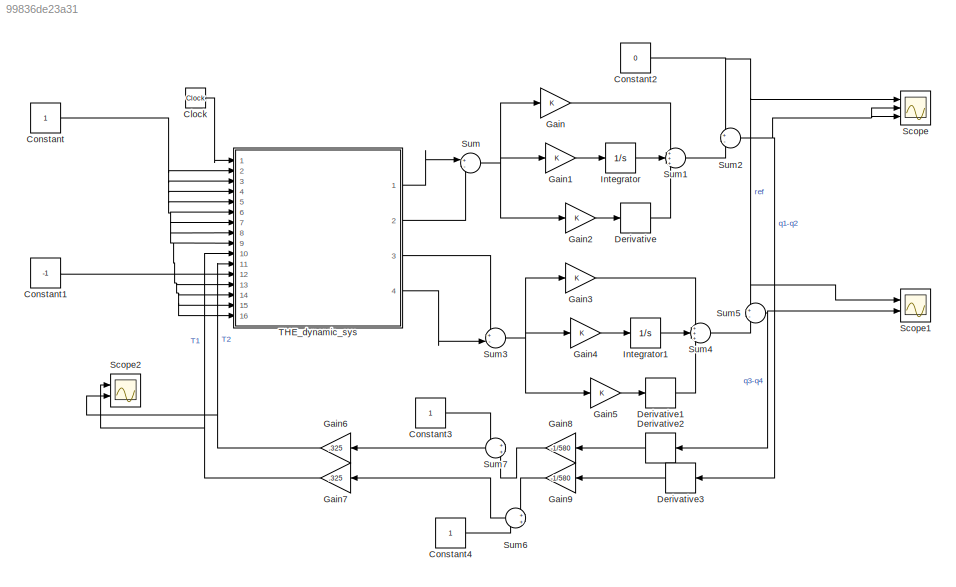
MODEL slx_99836de23a31
KIND model
CONFIG AbsTol = auto
CONFIG EnableMultiTasking = off
CONFIG FixedStep = auto
CONFIG MaxStep = auto
CONFIG MinStep = auto
CONFIG RelTol = 1e-3
CONFIG SampleTimeConstraint = Unconstrained
CONFIG Solver = VariableStepAuto
CONFIG SolverName = VariableStepAuto
CONFIG StartTime = 0.0
CONFIG StopTime = 10
BLOCK [Clock] Clock
  Decimation = 1
BLOCK [Constant] Constant
BLOCK [Constant] Constant1
  Value = -1
BLOCK [Constant] Constant2
  Value = 0
BLOCK [Constant] Constant3
BLOCK [Constant] Constant4
BLOCK [Derivative] Derivative
BLOCK [Derivative] Derivative1
BLOCK [Derivative] Derivative2
BLOCK [Derivative] Derivative3
BLOCK [Gain] Gain
  OutDataTypeStr = Inherit: Inherit via internal rule
  ParamDataTypeStr = Inherit: Inherit via internal rule
  SaturateOnIntegerOverflow = off
BLOCK [Gain] Gain1
  OutDataTypeStr = Inherit: Inherit via internal rule
  ParamDataTypeStr = Inherit: Inherit via internal rule
  SaturateOnIntegerOverflow = off
BLOCK [Gain] Gain2
  OutDataTypeStr = Inherit: Inherit via internal rule
  ParamDataTypeStr = Inherit: Inherit via internal rule
  SaturateOnIntegerOverflow = off
BLOCK [Gain] Gain3
  OutDataTypeStr = Inherit: Inherit via internal rule
  ParamDataTypeStr = Inherit: Inherit via internal rule
  SaturateOnIntegerOverflow = off
BLOCK [Gain] Gain4
  OutDataTypeStr = Inherit: Inherit via internal rule
  ParamDataTypeStr = Inherit: Inherit via internal rule
  SaturateOnIntegerOverflow = off
BLOCK [Gain] Gain5
  OutDataTypeStr = Inherit: Inherit via internal rule
  ParamDataTypeStr = Inherit: Inherit via internal rule
  SaturateOnIntegerOverflow = off
BLOCK [Gain] Gain6
  Gain = .325
  OutDataTypeStr = Inherit: Inherit via internal rule
  ParamDataTypeStr = Inherit: Inherit via internal rule
  SaturateOnIntegerOverflow = off
BLOCK [Gain] Gain7
  Gain = .325
  OutDataTypeStr = Inherit: Inherit via internal rule
  ParamDataTypeStr = Inherit: Inherit via internal rule
  SaturateOnIntegerOverflow = off
BLOCK [Gain] Gain8
  Gain = -1/580
  OutDataTypeStr = Inherit: Inherit via internal rule
  ParamDataTypeStr = Inherit: Inherit via internal rule
  SaturateOnIntegerOverflow = off
BLOCK [Gain] Gain9
  Gain = -1/580
  OutDataTypeStr = Inherit: Inherit via internal rule
  ParamDataTypeStr = Inherit: Inherit via internal rule
  SaturateOnIntegerOverflow = off
BLOCK [Integrator] Integrator
  Ports = [1, 1]
BLOCK [Integrator] Integrator1
  Ports = [1, 1]
BLOCK [Scope] Scope
  Floating = off
  NumInputPorts = 3
  Ports = [3]
  ScopeSpecificationString = Simulink.scopes.TimeScopeBlockCfg('CurrentConfiguration', extmgr.ConfigurationSet(extmgr.Configuration('Core','General UI',true),extmgr.Configuration('Core','Source UI',true),extmgr.Configuration('Sources','WiredSimulink',true),extmgr.Configuration('Visuals','Time Domain',true,'SerializedDisplays',{struct('MinYLimReal','-457444367.45742','MaxYLimReal','50827152.02999','YLabelReal','','MinYLimMag',...<+1504ch>
BLOCK [Scope] Scope1
  Floating = off
  NumInputPorts = 2
  Ports = [2]
  ScopeSpecificationString = Simulink.scopes.TimeScopeBlockCfg('CurrentConfiguration', extmgr.ConfigurationSet(extmgr.Configuration('Core','General UI',true),extmgr.Configuration('Core','Source UI',true),extmgr.Configuration('Sources','WiredSimulink',true,'DataLoggingVariableName','ScopeData1'),extmgr.Configuration('Visuals','Time Domain',true,'SerializedDisplays',{struct('MinYLimReal','-457444367.45693','MaxYLimReal','508271...<+1506ch>
BLOCK [Scope] Scope2
  Floating = off
  NumInputPorts = 2
  Ports = [2]
  ScopeSpecificationString = Simulink.scopes.TimeScopeBlockCfg('CurrentConfiguration', extmgr.ConfigurationSet(extmgr.Configuration('Core','General UI',true,'FigureColor',[0 0 0]),extmgr.Configuration('Core','Source UI',true),extmgr.Configuration('Sources','WiredSimulink',true,'DataLoggingVariableName','ScopeData2'),extmgr.Configuration('Visuals','Time Domain',true,'SerializedDisplays',{struct('MinYLimReal','-74085.51209','Ma...<+2127ch>
BLOCK [Sum] Sum
  IconShape = round
  InputSameDT = off
  Inputs = +-
  OutDataTypeStr = Inherit: Inherit via internal rule
  Ports = [2, 1]
  SaturateOnIntegerOverflow = off
BLOCK [Sum] Sum1
  IconShape = round
  InputSameDT = off
  Inputs = +++
  OutDataTypeStr = Inherit: Inherit via internal rule
  Ports = [3, 1]
  SaturateOnIntegerOverflow = off
BLOCK [Sum] Sum2
  IconShape = round
  InputSameDT = off
  Inputs = +-
  OutDataTypeStr = Inherit: Inherit via internal rule
  Ports = [2, 1]
  SaturateOnIntegerOverflow = off
BLOCK [Sum] Sum3
  IconShape = round
  InputSameDT = off
  Inputs = +-
  OutDataTypeStr = Inherit: Inherit via internal rule
  Ports = [2, 1]
  SaturateOnIntegerOverflow = off
BLOCK [Sum] Sum4
  IconShape = round
  InputSameDT = off
  Inputs = +++
  OutDataTypeStr = Inherit: Inherit via internal rule
  Ports = [3, 1]
  SaturateOnIntegerOverflow = off
BLOCK [Sum] Sum5
  IconShape = round
  InputSameDT = off
  Inputs = +-
  OutDataTypeStr = Inherit: Inherit via internal rule
  Ports = [2, 1]
  SaturateOnIntegerOverflow = off
BLOCK [Sum] Sum6
  IconShape = round
  InputSameDT = off
  OutDataTypeStr = Inherit: Inherit via internal rule
  Ports = [2, 1]
  SaturateOnIntegerOverflow = off
BLOCK [Sum] Sum7
  IconShape = round
  InputSameDT = off
  OutDataTypeStr = Inherit: Inherit via internal rule
  Ports = [2, 1]
  SaturateOnIntegerOverflow = off
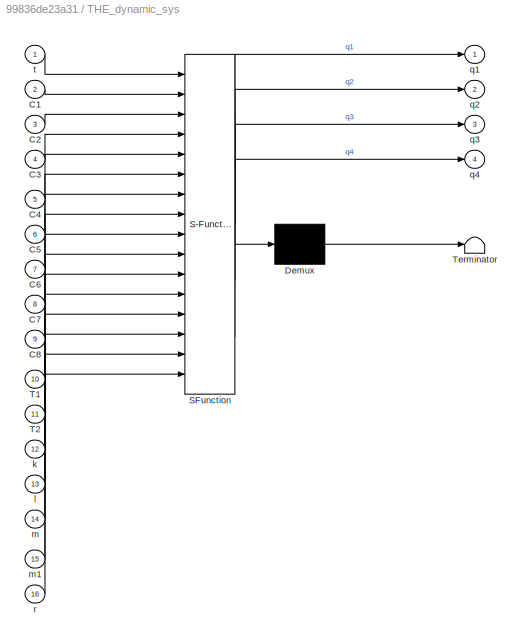
BLOCK [SubSystem] THE_dynamic_sys
  ErrorFcn = Stateflow.Translate.translate
  PermitHierarchicalResolution = ExplicitOnly
  Ports = [16, 4]
  RequestExecContextInheritance = off
  SFBlockType = MATLAB Function
  TreatAsAtomicUnit = on
BLOCK [Demux] THE_dynamic_sys/ Demux 
  Outputs = 1
  Ports = [1, 1]
BLOCK [S-Function] THE_dynamic_sys/ SFunction 
  EnableBusSupport = on
  FunctionName = sf_sfun
  PortCounts = [16 5]
  Ports = [16, 5]
  SFcnIsStateOwnerBlock = off
  SFunctionDeploymentMode = off
  Tag = Stateflow S-Function model_euler 2
BLOCK [Terminator] THE_dynamic_sys/ Terminator 
BLOCK [Inport] THE_dynamic_sys/C1
  IconDisplay = Port number
  Port = 2
BLOCK [Inport] THE_dynamic_sys/C2
  IconDisplay = Port number
  Port = 3
BLOCK [Inport] THE_dynamic_sys/C3
  IconDisplay = Port number
  Port = 4
BLOCK [Inport] THE_dynamic_sys/C4
  IconDisplay = Port number
  Port = 5
BLOCK [Inport] THE_dynamic_sys/C5
  IconDisplay = Port number
  Port = 6
BLOCK [Inport] THE_dynamic_sys/C6
  IconDisplay = Port number
  Port = 7
BLOCK [Inport] THE_dynamic_sys/C7
  IconDisplay = Port number
  Port = 8
BLOCK [Inport] THE_dynamic_sys/C8
  IconDisplay = Port number
  Port = 9
BLOCK [Inport] THE_dynamic_sys/T1
  IconDisplay = Port number
  Port = 10
BLOCK [Inport] THE_dynamic_sys/T2
  IconDisplay = Port number
  Port = 11
BLOCK [Inport] THE_dynamic_sys/k
  IconDisplay = Port number
  Port = 12
BLOCK [Inport] THE_dynamic_sys/l
  IconDisplay = Port number
  Port = 13
BLOCK [Inport] THE_dynamic_sys/m
  IconDisplay = Port number
  Port = 14
BLOCK [Inport] THE_dynamic_sys/m1
  IconDisplay = Port number
  Port = 15
BLOCK [Outport] THE_dynamic_sys/q1
  IconDisplay = Port number
BLOCK [Outport] THE_dynamic_sys/q2
  IconDisplay = Port number
  Port = 2
BLOCK [Outport] THE_dynamic_sys/q3
  IconDisplay = Port number
  Port = 3
BLOCK [Outport] THE_dynamic_sys/q4
  IconDisplay = Port number
  Port = 4
BLOCK [Inport] THE_dynamic_sys/r
  IconDisplay = Port number
  Port = 16
BLOCK [Inport] THE_dynamic_sys/t
  IconDisplay = Port number
LINE Clock:1 -> THE_dynamic_sys:1
LINE Constant1:1 -> THE_dynamic_sys:12
NET Constant2:1 -> Scope1:1, Scope:1, Sum2:1, Sum5:1
LINE Constant3:1 -> Sum7:1
LINE Constant4:1 -> Sum6:2
NET Constant:1 -> THE_dynamic_sys:13, THE_dynamic_sys:14, THE_dynamic_sys:15, THE_dynamic_sys:16, THE_dynamic_sys:2, THE_dynamic_sys:3, THE_dynamic_sys:4, THE_dynamic_sys:5, THE_dynamic_sys:6, THE_dynamic_sys:7, THE_dynamic_sys:8, THE_dynamic_sys:9
LINE Derivative1:1 -> Sum4:3
LINE Derivative2:1 -> Gain8:1
LINE Derivative3:1 -> Gain9:1
LINE Derivative:1 -> Sum1:3
LINE Gain1:1 -> Integrator:1
LINE Gain2:1 -> Derivative:1
LINE Gain3:1 -> Sum4:1
LINE Gain4:1 -> Integrator1:1
LINE Gain5:1 -> Derivative1:1
NET Gain6:1 -> Scope2:2, THE_dynamic_sys:11
NET Gain7:1 -> Scope2:1, THE_dynamic_sys:10
LINE Gain8:1 -> Sum7:2
LINE Gain9:1 -> Sum6:1
LINE Gain:1 -> Sum1:1
LINE Integrator1:1 -> Sum4:2
LINE Integrator:1 -> Sum1:2
LINE Sum1:1 -> Sum2:2
NET Sum2:1 -> Derivative3:1, Scope:2, Scope:3
NET Sum3:1 -> Gain3:1, Gain4:1, Gain5:1
LINE Sum4:1 -> Sum5:2
NET Sum5:1 -> Derivative2:1, Scope1:2
LINE Sum6:1 -> Gain7:1
LINE Sum7:1 -> Gain6:1
NET Sum:1 -> Gain1:1, Gain2:1, Gain:1
LINE THE_dynamic_sys:1 -> Sum:1
LINE THE_dynamic_sys:2 -> Sum:2
LINE THE_dynamic_sys:3 -> Sum3:1
LINE THE_dynamic_sys:4 -> Sum3:2
note: NET lines group one-source signal fan-out (src -> all destinations, sorted); 1:1 wires keep LINE
CHART THE_dynamic_sys states=1 transitions=1
  STATE_LABEL 'eML_blk_kernel()'
  STATE_LABEL 'SCRIPT:\nfunction [q1,q2,q3,q4] = THE_dynamic_sys(t,C1,C2,C3,C4,C5,C6,C7,C8,T1,T2,k,l,m,m1,r)\n%#codegen\n\n%    This function was generated by the Symbolic Math Toolbox version 8.2.\n%    13-Jan-2019 20:54:21\n\nq1 = (l.^2.*m.*(C1-(T1.*1.0./l.^2.*m1.*r.^2.*t.^2)./(m.*2.0)))./(l.^2.*m+m1.*r.^2)+(l.^2.*m.*t.*(C3+(T1.*1.0./l.^2.*m1.*r.^2.*t)./m))./(l.^2.*m+m1.*r.^2)+(sqrt(2.0).*1.0./sqrt(-k).*l.^5.*m.^(5.0...<+3608ch>'
